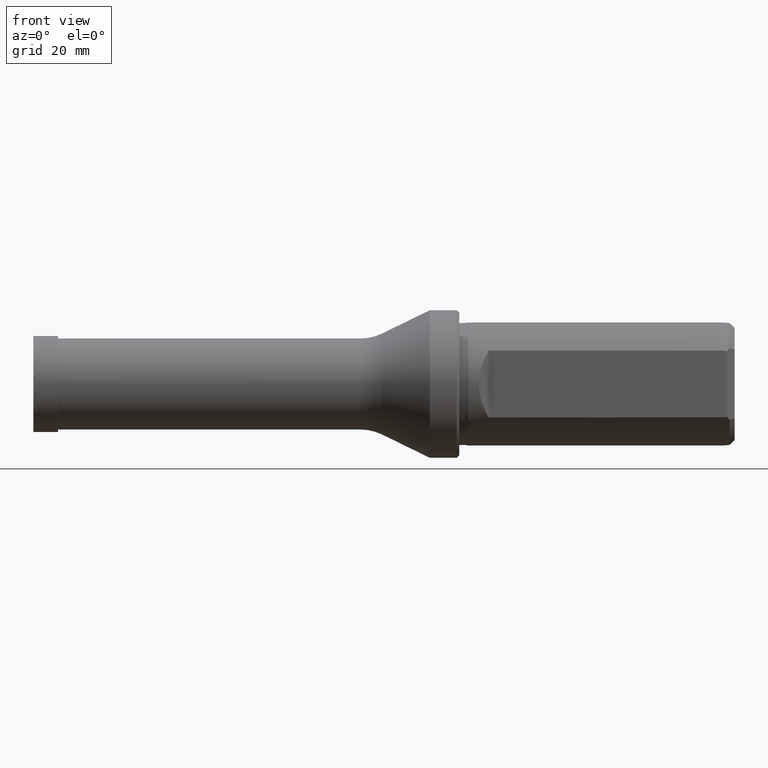
[diagram: clean part render]
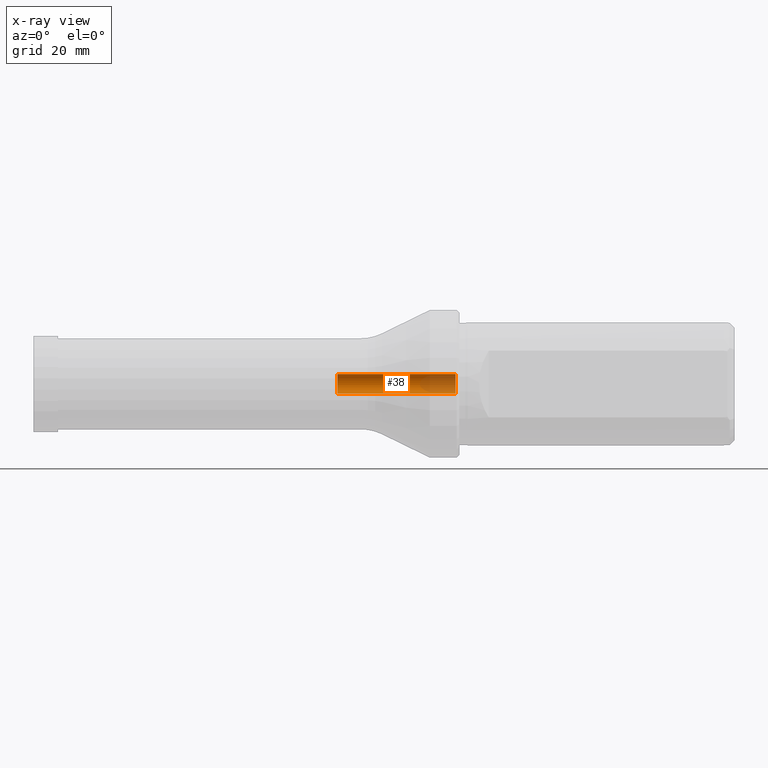
[diagram: x-ray — body ghosted, one internal face saturated and labeled with its STEP entity id]
A machine part, front view, then the same camera in x-ray: the body is ghosted and one INTERNAL B-rep face — a face not visible from any outside direction — is saturated and labeled: STEP entity #38.
In plain terms, the highlighted cylindrical surface (edge-blend (fillet) strip) has radius 2 mm, axis along (-1, -0, -0).
Its self-contained STEP definition (entity closure, byte-faithful):
#38 = ADVANCED_FACE ( 'NONE', ( #345 ), #517, .F. ) ;
#42 = VECTOR ( 'NONE', #507, 1000.000000000000000 ) ;
#45 = ORIENTED_EDGE ( 'NONE', *, *, #291, .T. ) ;
#110 = VERTEX_POINT ( 'NONE', #1021 ) ;
#114 = CARTESIAN_POINT ( 'NONE',  ( 61.30172123805512300, 2.449293598294710400E-016, 2.000000000000003100 ) ) ;
#148 = ORIENTED_EDGE ( 'NONE', *, *, #330, .F. ) ;
#169 = AXIS2_PLACEMENT_3D ( 'NONE', #730, #204, #1049 ) ;
#204 = DIRECTION ( 'NONE',  ( -1.000000000000000000, -0.0000000000000000000, -0.0000000000000000000 ) ) ;
#291 = EDGE_CURVE ( 'NONE', #110, #638, #843, .T. ) ;
#308 = CARTESIAN_POINT ( 'NONE',  ( 85.34892422621555900, 2.449293598294707900E-016, -2.000000000000000000 ) ) ;
#330 = EDGE_CURVE ( 'NONE', #876, #914, #894, .T. ) ;
#345 = FACE_OUTER_BOUND ( 'NONE', #404, .T. ) ;
#404 = EDGE_LOOP ( 'NONE', ( #148, #985, #45, #1138 ) ) ;
#421 = AXIS2_PLACEMENT_3D ( 'NONE', #504, #493, #490 ) ;
#425 = CIRCLE ( 'NONE', #860, 2.000000000000003100 ) ;
#490 = DIRECTION ( 'NONE',  ( 0.0000000000000000000, 0.0000000000000000000, 1.000000000000000000 ) ) ;
#493 = DIRECTION ( 'NONE',  ( -1.000000000000000000, -0.0000000000000000000, -0.0000000000000000000 ) ) ;
#504 = CARTESIAN_POINT ( 'NONE',  ( 85.34892422621555900, 0.0000000000000000000, 0.0000000000000000000 ) ) ;
#507 = DIRECTION ( 'NONE',  ( -1.000000000000000000, -0.0000000000000000000, -0.0000000000000000000 ) ) ;
#517 = CYLINDRICAL_SURFACE ( 'NONE', #169, 2.000000000000001800 ) ;
#522 = CARTESIAN_POINT ( 'NONE',  ( 0.0000000000000000000, 2.449293598294708900E-016, -2.000000000000001800 ) ) ;
#548 = EDGE_CURVE ( 'NONE', #638, #914, #425, .T. ) ;
#558 = EDGE_CURVE ( 'NONE', #110, #876, #1131, .T. ) ;
#593 = DIRECTION ( 'NONE',  ( 0.0000000000000000000, 0.0000000000000000000, 1.000000000000000000 ) ) ;
#594 = DIRECTION ( 'NONE',  ( -1.000000000000000000, -0.0000000000000000000, -0.0000000000000000000 ) ) ;
#595 = CARTESIAN_POINT ( 'NONE',  ( 61.30172123805512300, 0.0000000000000000000, 0.0000000000000000000 ) ) ;
#606 = CARTESIAN_POINT ( 'NONE',  ( 0.0000000000000000000, 0.0000000000000000000, 2.000000000000001800 ) ) ;
#623 = DIRECTION ( 'NONE',  ( -1.000000000000000000, -0.0000000000000000000, -0.0000000000000000000 ) ) ;
#638 = VERTEX_POINT ( 'NONE', #114 ) ;
#730 = CARTESIAN_POINT ( 'NONE',  ( 0.0000000000000000000, 0.0000000000000000000, 0.0000000000000000000 ) ) ;
#843 = LINE ( 'NONE', #606, #1034 ) ;
#860 = AXIS2_PLACEMENT_3D ( 'NONE', #595, #594, #593 ) ;
#876 = VERTEX_POINT ( 'NONE', #308 ) ;
#894 = LINE ( 'NONE', #522, #42 ) ;
#914 = VERTEX_POINT ( 'NONE', #1178 ) ;
#985 = ORIENTED_EDGE ( 'NONE', *, *, #558, .F. ) ;
#1021 = CARTESIAN_POINT ( 'NONE',  ( 85.34892422621555900, 0.0000000000000000000, 2.000000000000000000 ) ) ;
#1034 = VECTOR ( 'NONE', #623, 1000.000000000000000 ) ;
#1049 = DIRECTION ( 'NONE',  ( 0.0000000000000000000, 0.0000000000000000000, 1.000000000000000000 ) ) ;
#1131 = CIRCLE ( 'NONE', #421, 2.000000000000000000 ) ;
#1138 = ORIENTED_EDGE ( 'NONE', *, *, #548, .T. ) ;
#1178 = CARTESIAN_POINT ( 'NONE',  ( 61.30172123805512300, 0.0000000000000000000, -2.000000000000003100 ) ) ;